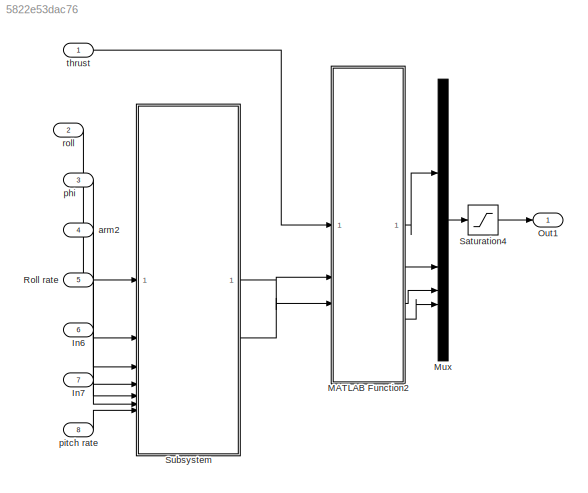
MODEL slx_5822e53dac76
KIND model
CONFIG AbsTol = auto
CONFIG EnableMultiTasking = off
CONFIG FixedStep = 0.001
CONFIG MaxStep = auto
CONFIG MinStep = auto
CONFIG RelTol = 1e-3
CONFIG SampleTimeConstraint = Unconstrained
CONFIG SolverName = FixedStepDiscrete
CONFIG StartTime = 0.0
CONFIG StopTime = inf
BLOCK [Inport] In6
  Port = 6
BLOCK [Inport] In7
  Port = 7
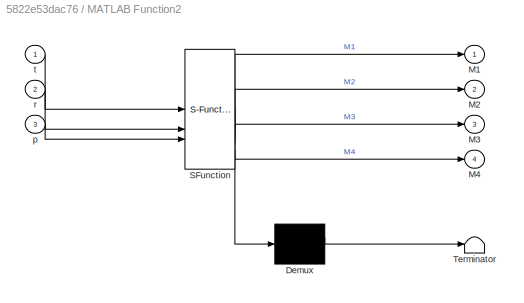
BLOCK [SubSystem] MATLAB Function2
  ErrorFcn = Stateflow.Translate.translate
  PermitHierarchicalResolution = ExplicitOnly
  SFBlockType = MATLAB Function
  TreatAsAtomicUnit = on
BLOCK [Demux] MATLAB Function2/ Demux 
  Outputs = 1
BLOCK [S-Function] MATLAB Function2/ SFunction 
  EnableBusSupport = off
  FunctionName = sf_sfun
  PortCounts = [3 5]
  SFcnIsStateOwnerBlock = off
  SFunctionDeploymentMode = off
  Tag = Stateflow S-Function 3
BLOCK [Terminator] MATLAB Function2/ Terminator 
BLOCK [Outport] MATLAB Function2/M1
BLOCK [Outport] MATLAB Function2/M2
  Port = 2
BLOCK [Outport] MATLAB Function2/M3
  Port = 3
BLOCK [Outport] MATLAB Function2/M4
  Port = 4
BLOCK [Inport] MATLAB Function2/p
  Port = 3
BLOCK [Inport] MATLAB Function2/r
  Port = 2
BLOCK [Inport] MATLAB Function2/t
BLOCK [Mux] Mux
  DisplayOption = bar
BLOCK [Outport] Out1
BLOCK [Inport] Roll rate
  Port = 5
BLOCK [Saturate] Saturation4
  LowerLimit = 0
  UpperLimit = 1
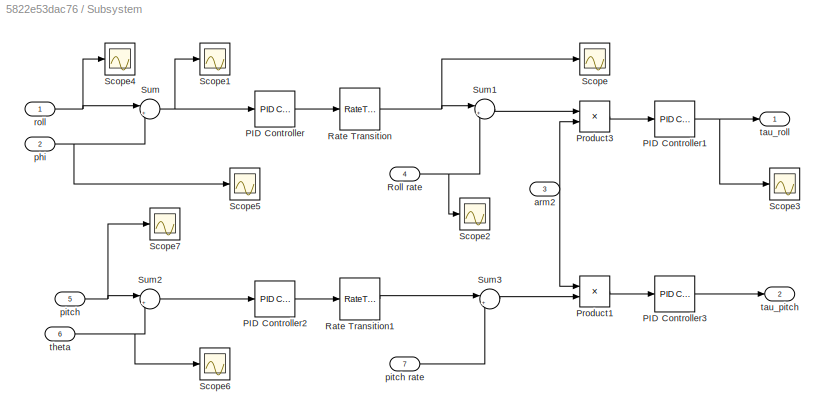
BLOCK [SubSystem] Subsystem
BLOCK [Reference] Subsystem/PID Controller  REF=slpidlib/PID Controller
  LibrarySourceBlock = simulink/Continuous/PID Controller
  SourceBlock = slpidlib/PID Controller
  SourceType = PID 1dof
BLOCK [Reference] Subsystem/PID Controller1  REF=slpidlib/PID Controller
  LibrarySourceBlock = simulink/Continuous/PID Controller
  SourceBlock = slpidlib/PID Controller
  SourceType = PID 1dof
BLOCK [Reference] Subsystem/PID Controller2  REF=slpidlib/PID Controller
  LibrarySourceBlock = simulink/Continuous/PID Controller
  SourceBlock = slpidlib/PID Controller
  SourceType = PID 1dof
BLOCK [Reference] Subsystem/PID Controller3  REF=slpidlib/PID Controller
  LibrarySourceBlock = simulink/Continuous/PID Controller
  SourceBlock = slpidlib/PID Controller
  SourceType = PID 1dof
BLOCK [Product] Subsystem/Product1
BLOCK [Product] Subsystem/Product3
BLOCK [RateTransition] Subsystem/Rate Transition
  OutPortSampleTime = 0.001
BLOCK [RateTransition] Subsystem/Rate Transition1
  OutPortSampleTime = 0.001
BLOCK [Inport] Subsystem/Roll rate
  Port = 4
BLOCK [Scope] Subsystem/Scope
  ActiveDisplayYMaximum = 0.062193159013986588
  ActiveDisplayYMinimum = -0.066639374941587448
  DataLogging = on
  DataLoggingSaveFormat = Structure With Time
  DataLoggingVariableName = des_rollrate
  Floating = off
  GraphicalSettings = {"Style":{"BackgroundColor":[0.12941176470588237,0.12941176470588237,0.12941176470588237],"AxesColor":[0.07058823529411765,0.07058823529411765,0.07058823529411765],"LabelsColor":[0.8509803921568627,0.8509803921568627,0.8509803921568627],"PreserveColors":false,"Visible":[true],"LineStyle":["-"],"LineWidth":[1.5],"BarWidth":[0.9],"LineColor":["auto"],"LineFaceAlpha":[1],"LineEdgeAlpha":[1],"Marker":...<+1895ch>
  MultipleDisplayCache = [{"MaxYLimMag":0.066639374941587448,"MaxYLimReal":0.062193159013986588,"MinYLimMag":0,"MinYLimReal":-0.066639374941587448,"PlotAsMagnitudePhase":false,"ShowGrid":true,"ShowLegend":false,"Title":"%<SignalLabel>","YLabel":""}]
  NumInputPorts = 1
  ScopeFrameLocation = window
  WasSavedAsWebScope = on
  WindowPosition = [261.000000,235.000000,560.000000,420.000000,]
BLOCK [Scope] Subsystem/Scope1
  ActiveDisplayYMaximum = 0.65147780627012253
  ActiveDisplayYMinimum = -0.65983980149030685
  DataLogging = on
  DataLoggingSaveFormat = Structure With Time
  DataLoggingVariableName = error1
  Floating = off
  GraphicalSettings = {"Style":{"BackgroundColor":[0.12941176470588237,0.12941176470588237,0.12941176470588237],"AxesColor":[0.07058823529411765,0.07058823529411765,0.07058823529411765],"LabelsColor":[0.8509803921568627,0.8509803921568627,0.8509803921568627],"PreserveColors":false,"Visible":[true],"LineStyle":["-"],"LineWidth":[1.5],"BarWidth":[0.9],"LineColor":["auto"],"LineFaceAlpha":[1],"LineEdgeAlpha":[1],"Marker":...<+1991ch>
  MultipleDisplayCache = [{"MaxYLimMag":0.65983980149030685,"MaxYLimReal":0.65147780627012253,"MinYLimMag":0,"MinYLimReal":-0.65983980149030685,"PlotAsMagnitudePhase":false,"ShowGrid":true,"ShowLegend":false,"Title":"%<SignalLabel>","YLabel":""}]
  NumInputPorts = 1
  ScopeFrameLocation = window
  WasSavedAsWebScope = on
  WindowPosition = [661.000000,230.000000,560.000000,420.000000,]
BLOCK [Scope] Subsystem/Scope2
  ActiveDisplayYMaximum = 1.3986920863389969
  ActiveDisplayYMinimum = -1.3887496739625931
  DataLogging = on
  DataLoggingSaveFormat = Structure With Time
  DataLoggingVariableName = rollrate
  Floating = off
  GraphicalSettings = {"AxesScalingProperties":{"AlignXAxis":"Center","AlignYAxis":"Center","AutoScaleXAxisLimits":false,"AxesScaling":"Manual","AxesScalingNumUpdates":10,"ExpandOnly":true,"ScaleAxesLimitsAtStop":false,"XAxisDataRange":100,"YAxisDataRange":80},"DisplayProperties":{"ColorOrder":["auto","auto","auto","auto","auto","auto","auto","auto","auto","auto","auto","auto","auto","auto","auto","auto","auto","auto",...<+2022ch>
  MultipleDisplayCache = [{"MaxYLimMag":1.3986920863389969,"MaxYLimReal":1.3986920863389969,"MinYLimMag":0,"MinYLimReal":-1.3887496739625931,"PlotAsMagnitudePhase":false,"ShowGrid":true,"ShowLegend":false,"Title":"%<SignalLabel>","YLabel":""}]
  NumInputPorts = 1
  ScopeFrameLocation = window
  WasSavedAsWebScope = on
  WindowPosition = [1149.000000,287.000000,560.000000,433.000000,]
BLOCK [Scope] Subsystem/Scope3
  ActiveDisplayYMaximum = 0.13515391017383055
  ActiveDisplayYMinimum = -0.13114039766727936
  DataLogging = on
  DataLoggingSaveFormat = Structure With Time
  DataLoggingVariableName = tau_roll
  Floating = off
  GraphicalSettings = {"AxesScalingProperties":{"AlignXAxis":"Center","AlignYAxis":"Center","AutoScaleXAxisLimits":false,"AxesScaling":"Manual","AxesScalingNumUpdates":10,"ExpandOnly":true,"ScaleAxesLimitsAtStop":false,"XAxisDataRange":100,"YAxisDataRange":80},"DisplayProperties":{"ColorOrder":["auto","auto","auto","auto","auto","auto","auto","auto","auto","auto","auto","auto","auto","auto","auto","auto","auto","auto",...<+1938ch>
  MultipleDisplayCache = [{"MaxYLimMag":1.25,"MaxYLimReal":0.13515391017383055,"MinYLimMag":0,"MinYLimReal":-0.13114039766727936,"PlotAsMagnitudePhase":false,"ShowGrid":true,"ShowLegend":false,"Title":"%<SignalLabel>","YLabel":""}]
  NumInputPorts = 1
  ScopeFrameLocation = window
  WasSavedAsWebScope = on
  WindowPosition = [488.000000,222.000000,560.000000,420.000000,]
BLOCK [Scope] Subsystem/Scope4
  ActiveDisplayYMaximum = 0.10656582657247782
  ActiveDisplayYMinimum = -0.10880342219024897
  DataLogging = on
  DataLoggingSaveFormat = Structure With Time
  DataLoggingVariableName = des_roll
  Floating = off
  GraphicalSettings = {"AxesScalingProperties":{"AlignXAxis":"Center","AlignYAxis":"Center","AutoScaleXAxisLimits":false,"AxesScaling":"Manual","AxesScalingNumUpdates":10,"ExpandOnly":true,"ScaleAxesLimitsAtStop":false,"XAxisDataRange":100,"YAxisDataRange":80},"DisplayProperties":{"ColorOrder":["auto","auto","auto","auto","auto","auto","auto","auto","auto","auto","auto","auto","auto","auto","auto","auto","auto","auto",...<+2006ch>
  MultipleDisplayCache = [{"MaxYLimMag":0.10880342219024897,"MaxYLimReal":0.10656582657247782,"MinYLimMag":0,"MinYLimReal":-0.10880342219024897,"PlotAsMagnitudePhase":false,"ShowGrid":true,"ShowLegend":false,"Title":"%<SignalLabel>","YLabel":""}]
  NumInputPorts = 1
  ScopeFrameLocation = window
  WasSavedAsWebScope = on
  WindowPosition = [586.000000,191.000000,560.000000,420.000000,]
BLOCK [Scope] Subsystem/Scope5
  ActiveDisplayYMaximum = 0.58284265660383228
  ActiveDisplayYMinimum = -0.57664480562044174
  DataLogging = on
  DataLoggingSaveFormat = Structure With Time
  DataLoggingVariableName = quatroll
  Floating = off
  GraphicalSettings = {"AxesScalingProperties":{"AlignXAxis":"Center","AlignYAxis":"Center","AutoScaleXAxisLimits":false,"AxesScaling":"Manual","AxesScalingNumUpdates":10,"ExpandOnly":true,"ScaleAxesLimitsAtStop":false,"XAxisDataRange":100,"YAxisDataRange":80},"DisplayProperties":{"ColorOrder":["auto","auto","auto","auto","auto","auto","auto","auto","auto","auto","auto","auto","auto","auto","auto","auto","auto","auto",...<+2004ch>
  MultipleDisplayCache = [{"MaxYLimMag":0.58284265660383228,"MaxYLimReal":0.58284265660383228,"MinYLimMag":0,"MinYLimReal":-0.57664480562044174,"PlotAsMagnitudePhase":false,"ShowGrid":true,"ShowLegend":false,"Title":"%<SignalLabel>","YLabel":""}]
  NumInputPorts = 1
  ScopeFrameLocation = window
  WasSavedAsWebScope = on
  WindowPosition = [93.000000,235.000000,560.000000,402.000000,]
BLOCK [Scope] Subsystem/Scope6
  ActiveDisplayYMaximum = 0.78107425943017006
  ActiveDisplayYMinimum = -0.31608188524842262
  ContainerLayout = {"WindowBounds":[307,28,1296,807]}
  DataLogging = on
  DataLoggingSaveFormat = Structure With Time
  DataLoggingVariableName = quatpitch
  Floating = off
  GraphicalSettings = {"Style":{"BackgroundColor":[0.12941176470588237,0.12941176470588237,0.12941176470588237],"AxesColor":[0.07058823529411765,0.07058823529411765,0.07058823529411765],"LabelsColor":[0.8509803921568627,0.8509803921568627,0.8509803921568627],"PreserveColors":false,"Visible":[true],"LineStyle":["-"],"LineWidth":[1.5],"BarWidth":[0.9],"LineColor":["auto"],"LineFaceAlpha":[1],"LineEdgeAlpha":[1],"Marker":...<+1995ch>
  MultipleDisplayCache = [{"MaxYLimMag":0.78107425943017006,"MaxYLimReal":0.78107425943017006,"MinYLimMag":0,"MinYLimReal":-0.31608188524842262,"PlotAsMagnitudePhase":false,"ShowGrid":true,"ShowLegend":false,"Title":"%<SignalLabel>","YLabel":""}]
  NumInputPorts = 1
  ScopeFrameLocation = container
  WasSavedAsWebScope = on
  WindowPosition = [307.000000,245.000000,1296.000000,807.000000,]
BLOCK [Scope] Subsystem/Scope7
  ActiveDisplayYMaximum = 1.2156594097614288
  ActiveDisplayYMinimum = -1.246184378862381
  DataLogging = on
  DataLoggingSaveFormat = Structure With Time
  DataLoggingVariableName = des_pitch
  Floating = off
  GraphicalSettings = {"Style":{"BackgroundColor":[0.12941176470588237,0.12941176470588237,0.12941176470588237],"AxesColor":[0.07058823529411765,0.07058823529411765,0.07058823529411765],"LabelsColor":[0.8509803921568627,0.8509803921568627,0.8509803921568627],"PreserveColors":false,"Visible":[true],"LineStyle":["-"],"LineWidth":[1.5],"BarWidth":[0.9],"LineColor":["auto"],"LineFaceAlpha":[1],"LineEdgeAlpha":[1],"Marker":...<+1898ch>
  MultipleDisplayCache = [{"MaxYLimMag":1.246184378862381,"MaxYLimReal":1.2156594097614288,"MinYLimMag":0,"MinYLimReal":-1.246184378862381,"PlotAsMagnitudePhase":false,"ShowGrid":true,"ShowLegend":false,"Title":"%<SignalLabel>","YLabel":""}]
  NumInputPorts = 1
  ScopeFrameLocation = window
  WasSavedAsWebScope = on
  WindowPosition = [463.000000,127.000000,560.000000,420.000000,]
BLOCK [Sum] Subsystem/Sum
  Inputs = |+-
BLOCK [Sum] Subsystem/Sum1
  Inputs = |+-
BLOCK [Sum] Subsystem/Sum2
  Inputs = |+-
BLOCK [Sum] Subsystem/Sum3
  Inputs = |+-
BLOCK [Inport] Subsystem/arm2
  Port = 3
BLOCK [Inport] Subsystem/phi
  Port = 2
BLOCK [Inport] Subsystem/pitch
  Port = 5
BLOCK [Inport] Subsystem/pitch rate
  Port = 7
BLOCK [Inport] Subsystem/roll
BLOCK [Outport] Subsystem/tau_pitch
  Port = 2
BLOCK [Outport] Subsystem/tau_roll
BLOCK [Inport] Subsystem/theta
  Port = 6
BLOCK [Inport] arm2
  Port = 4
BLOCK [Inport] phi
  Port = 3
BLOCK [Inport] pitch rate
  Port = 8
BLOCK [Inport] roll
  Port = 2
BLOCK [Inport] thrust
LINE In6:1 -> Subsystem:5
LINE In7:1 -> Subsystem:6
LINE MATLAB Function2:1 -> Mux:1
LINE MATLAB Function2:2 -> Mux:2
LINE MATLAB Function2:3 -> Mux:3
LINE MATLAB Function2:4 -> Mux:4
LINE Mux:1 -> Saturation4:1
LINE Roll rate:1 -> Subsystem:4
LINE Saturation4:1 -> Out1:1
NET Subsystem/PID Controller1:1 -> Subsystem/Scope3:1, Subsystem/tau_roll:1
LINE Subsystem/PID Controller2:1 -> Subsystem/Rate Transition1:1
LINE Subsystem/PID Controller3:1 -> Subsystem/tau_pitch:1
LINE Subsystem/PID Controller:1 -> Subsystem/Rate Transition:1
LINE Subsystem/Product1:1 -> Subsystem/PID Controller3:1
LINE Subsystem/Product3:1 -> Subsystem/PID Controller1:1
LINE Subsystem/Rate Transition1:1 -> Subsystem/Sum3:1
NET Subsystem/Rate Transition:1 -> Subsystem/Scope:1, Subsystem/Sum1:1
NET Subsystem/Roll rate:1 -> Subsystem/Scope2:1, Subsystem/Sum1:2
LINE Subsystem/Sum1:1 -> Subsystem/Product3:1
LINE Subsystem/Sum2:1 -> Subsystem/PID Controller2:1
LINE Subsystem/Sum3:1 -> Subsystem/Product1:2
NET Subsystem/Sum:1 -> Subsystem/PID Controller:1, Subsystem/Scope1:1
NET Subsystem/arm2:1 -> Subsystem/Product1:1, Subsystem/Product3:2
NET Subsystem/phi:1 -> Subsystem/Scope5:1, Subsystem/Sum:2
LINE Subsystem/pitch rate:1 -> Subsystem/Sum3:2
NET Subsystem/pitch:1 -> Subsystem/Scope7:1, Subsystem/Sum2:1
NET Subsystem/roll:1 -> Subsystem/Scope4:1, Subsystem/Sum:1
NET Subsystem/theta:1 -> Subsystem/Scope6:1, Subsystem/Sum2:2
LINE Subsystem:1 -> MATLAB Function2:2
LINE Subsystem:2 -> MATLAB Function2:3
LINE arm2:1 -> Subsystem:3
LINE phi:1 -> Subsystem:2
LINE pitch rate:1 -> Subsystem:7
LINE roll:1 -> Subsystem:1
LINE thrust:1 -> MATLAB Function2:1
note: NET lines group one-source signal fan-out (src -> all destinations, sorted); 1:1 wires keep LINE
CHART MATLAB Function2 states=1 transitions=1
  STATE_LABEL 'eML_blk_kernel()'
  STATE_LABEL 'SCRIPT:\nfunction [M1,M2,M3,M4]  = fcn(t,r, p)\nM1 = t - 0.707107*r + 0.707107*p;\nM2 = t + 0.707107*r - 0.707107*p;\nM3 = t + 0.707107*r + 0.707107*p;\nM4 = t - 0.707107*r - 0.707107*p;'
CHART  states=0 transitions=0
